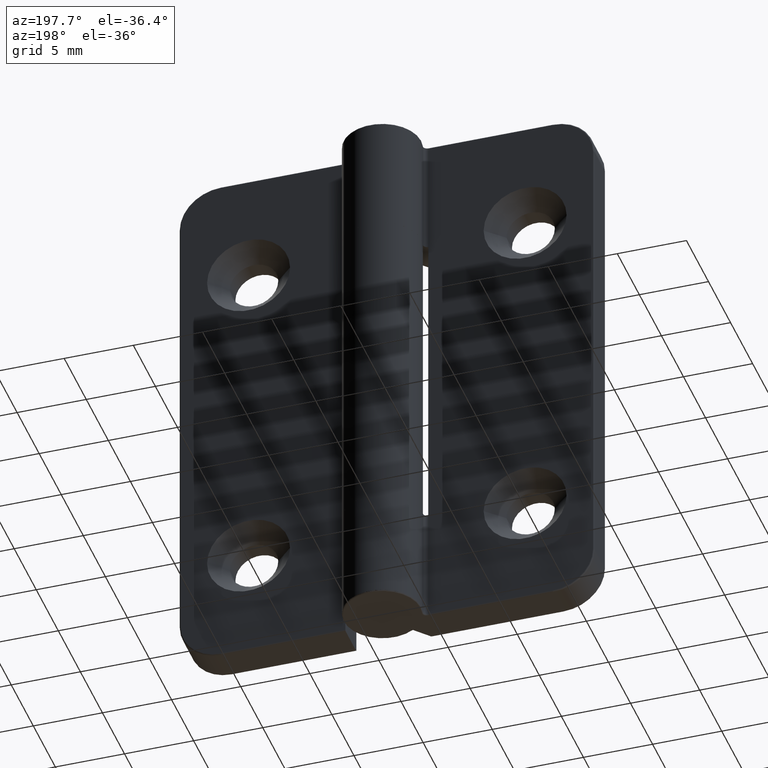
[diagram: clean part render]
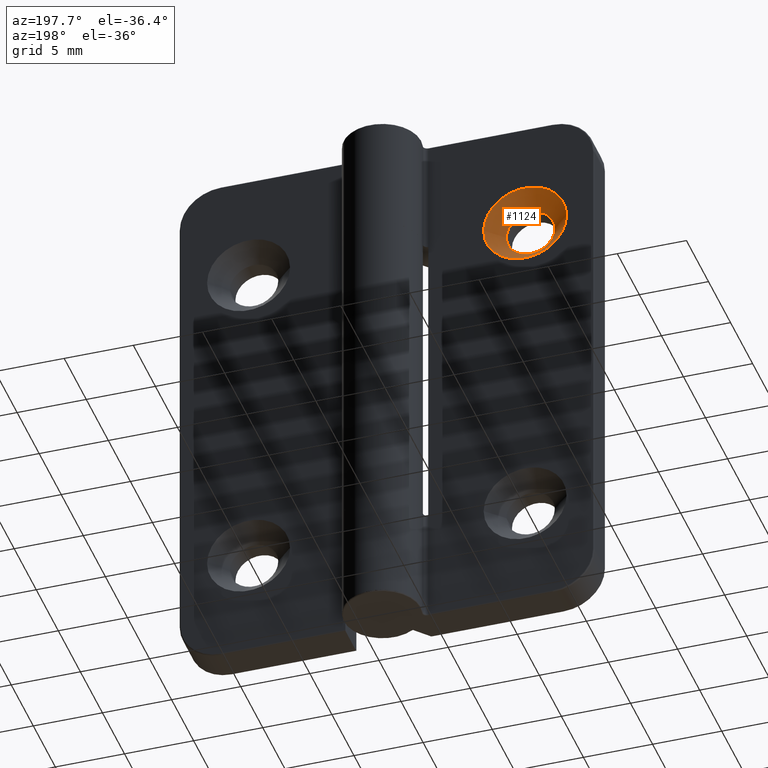
[diagram: same view with one face highlighted and labeled with its STEP entity id]
A machine part, auxiliary view. The second image highlights one B-rep face of the part: STEP entity #1124.
In plain terms, the highlighted conical surface has half-angle 45 deg.
Its self-contained STEP definition (entity closure, byte-faithful):
#35=CONICAL_SURFACE('',#1245,2.375,45.);
#99=FACE_BOUND('',#310,.T.);
#157=CIRCLE('',#1238,3.);
#158=CIRCLE('',#1246,1.75);
#229=FACE_OUTER_BOUND('',#309,.T.);
#309=EDGE_LOOP('',(#921));
#310=EDGE_LOOP('',(#922));
#555=VERTEX_POINT('',#1898);
#556=VERTEX_POINT('',#1911);
#683=EDGE_CURVE('',#555,#555,#157,.T.);
#688=EDGE_CURVE('',#556,#556,#158,.T.);
#921=ORIENTED_EDGE('',*,*,#683,.F.);
#922=ORIENTED_EDGE('',*,*,#688,.F.);
#1124=ADVANCED_FACE('',(#229,#99),#35,.F.);
#1238=AXIS2_PLACEMENT_3D('',#1899,#1505,#1506);
#1245=AXIS2_PLACEMENT_3D('',#1910,#1523,#1524);
#1246=AXIS2_PLACEMENT_3D('',#1912,#1525,#1526);
#1505=DIRECTION('center_axis',(0.,-1.,0.));
#1506=DIRECTION('ref_axis',(1.,0.,0.));
#1523=DIRECTION('center_axis',(0.,1.,0.));
#1524=DIRECTION('ref_axis',(1.,0.,0.));
#1525=DIRECTION('center_axis',(0.,1.,0.));
#1526=DIRECTION('ref_axis',(1.,0.,0.));
#1898=CARTESIAN_POINT('',(-7.,2.5,12.));
#1899=CARTESIAN_POINT('Origin',(-10.,2.5,12.));
#1910=CARTESIAN_POINT('Origin',(-10.,1.875,12.));
#1911=CARTESIAN_POINT('',(-8.25,1.25,12.));
#1912=CARTESIAN_POINT('Origin',(-10.,1.25,12.));